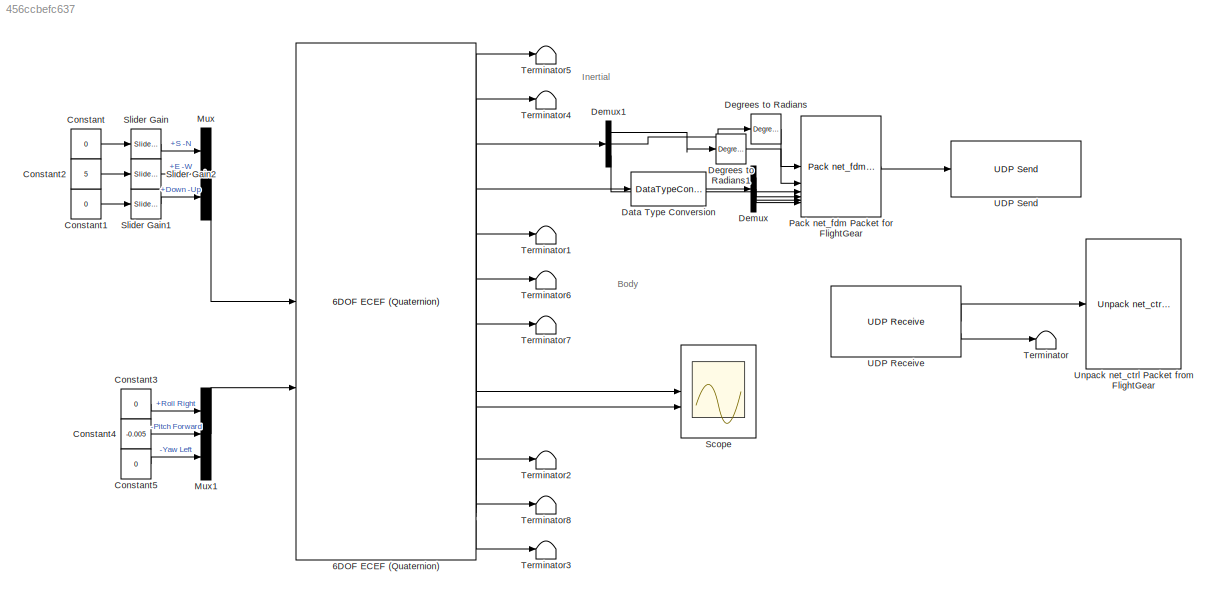
MODEL slx_456ccbefc637
KIND model
CONFIG AbsTol = auto
CONFIG EnableMultiTasking = on
CONFIG FixedStep = auto
CONFIG MaxStep = auto
CONFIG MinStep = auto
CONFIG RelTol = 1e-3
CONFIG SampleTimeConstraint = Unconstrained
CONFIG SolverName = FixedStepAuto
CONFIG StartTime = 0.0
CONFIG StopTime = 15
BLOCK [Reference] 6DOF ECEF (Quaternion)  REF=aerolib6dof2/6DOF ECEF (Quaternion)
  SourceBlock = aerolib6dof2/6DOF ECEF (Quaternion)
  SourceType = 6DOF EoM (ECEF)
BLOCK [Constant] Constant
  Value = 0
BLOCK [Constant] Constant1
  Value = 0
BLOCK [Constant] Constant2
  Value = 5
BLOCK [Constant] Constant3
  Value = 0
BLOCK [Constant] Constant4
  Value = -0.005
BLOCK [Constant] Constant5
  Value = 0
BLOCK [DataTypeConversion] Data Type Conversion
  OutDataTypeStr = single
  RndMeth = Floor
  SaturateOnIntegerOverflow = off
BLOCK [Reference] Degrees to Radians  REF=simulink_extras/Transformations/Degrees to
Radians
  SourceBlock = simulink_extras/Transformations/Degrees to\nRadians
  SourceType = DegreesToRadians
BLOCK [Reference] Degrees to Radians1  REF=simulink_extras/Transformations/Degrees to
Radians
  SourceBlock = simulink_extras/Transformations/Degrees to\nRadians
  SourceType = DegreesToRadians
BLOCK [Demux] Demux
  Outputs = 3
BLOCK [Demux] Demux1
  Outputs = 3
BLOCK [Mux] Mux
  DisplayOption = bar
  Inputs = 3
BLOCK [Mux] Mux1
  DisplayOption = bar
  Inputs = 3
BLOCK [Reference] Pack net_fdm Packet for FlightGear  REF=aerolibfltsims/Pack
net_fdm Packet
for FlightGear
  SourceBlock = aerolibfltsims/Pack\nnet_fdm Packet\nfor FlightGear
  SourceType = FlightGearPackNetFdm
BLOCK [Scope] Scope
  ActiveDisplayYMaximum = 17.665401740524448
  ActiveDisplayYMinimum = -7.4842430519070433
  Floating = off
  GraphicalSettings = {"Style":{"BackgroundColor":[0.12941176470588237,0.12941176470588237,0.12941176470588237],"AxesColor":[0.07058823529411765,0.07058823529411765,0.07058823529411765],"LabelsColor":[0.8509803921568627,0.8509803921568627,0.8509803921568627],"PreserveColors":false,"Visible":[true,true,true,true,true,true],"LineStyle":["-","-","-","-","-","-"],"LineWidth":[1.5,1.5,1.5,1.5,1.5,1.5],"BarWidth":[0.9,0.9,0....<+2608ch>
  MultipleDisplayCache = [{"MaxYLimMag":12.583427004824895,"MaxYLimReal":17.665401740524448,"MinYLimMag":0,"MinYLimReal":-7.4842430519070433,"PlotAsMagnitudePhase":false,"ShowGrid":true,"ShowLegend":false,"Title":"%<SignalLabel>","YLabel":""}]
  NumInputPorts = 2
  ScopeFrameLocation = window
  WasSavedAsWebScope = on
  WindowPosition = [680.000000,330.000000,560.000000,420.000000,]
BLOCK [Reference] Slider Gain  REF=simulink/Math
Operations/Slider
Gain
  SourceBlock = simulink/Math\nOperations/Slider\nGain
  SourceType = Slider Gain
BLOCK [Reference] Slider Gain1  REF=simulink/Math
Operations/Slider
Gain
  SourceBlock = simulink/Math\nOperations/Slider\nGain
  SourceType = Slider Gain
BLOCK [Reference] Slider Gain2  REF=simulink/Math
Operations/Slider
Gain
  SourceBlock = simulink/Math\nOperations/Slider\nGain
  SourceType = Slider Gain
BLOCK [Terminator] Terminator
BLOCK [Terminator] Terminator1
BLOCK [Terminator] Terminator2
BLOCK [Terminator] Terminator3
BLOCK [Terminator] Terminator4
BLOCK [Terminator] Terminator5
BLOCK [Terminator] Terminator6
BLOCK [Terminator] Terminator7
BLOCK [Terminator] Terminator8
BLOCK [Reference] UDP Receive  REF=instrumentlib/UDP Receive
  SourceBlock = instrumentlib/UDP Receive
  SourceType = instrument.system.UDPReceive
BLOCK [Reference] UDP Send  REF=instrumentlib/UDP Send
  SourceBlock = instrumentlib/UDP Send
  SourceType = instrument.system.UDPSend
BLOCK [Reference] Unpack net_ctrl Packet from FlightGear  REF=aerolibfltsims/Unpack
net_ctrl Packet
from FlightGear
  SourceBlock = aerolibfltsims/Unpack\nnet_ctrl Packet\nfrom FlightGear
  SourceType = FlightGearUnpackNetCtrl
ANNOTATION (root): Body
ANNOTATION (root): Inertial
LINE 6DOF ECEF (Quaternion):1 -> Terminator5:1
LINE 6DOF ECEF (Quaternion):10 -> Terminator2:1
LINE 6DOF ECEF (Quaternion):11 -> Terminator8:1
LINE 6DOF ECEF (Quaternion):12 -> Terminator3:1
LINE 6DOF ECEF (Quaternion):2 -> Terminator4:1
LINE 6DOF ECEF (Quaternion):3 -> Demux1:1
LINE 6DOF ECEF (Quaternion):4 -> Data Type Conversion:1
LINE 6DOF ECEF (Quaternion):5 -> Terminator1:1
LINE 6DOF ECEF (Quaternion):6 -> Terminator6:1
LINE 6DOF ECEF (Quaternion):7 -> Terminator7:1
LINE 6DOF ECEF (Quaternion):8 -> Scope:1
LINE 6DOF ECEF (Quaternion):9 -> Scope:2
LINE Constant1:1 -> Slider Gain1:1
LINE Constant2:1 -> Slider Gain2:1
LINE Constant3:1 -> Mux1:1
LINE Constant4:1 -> Mux1:2
LINE Constant5:1 -> Mux1:3
LINE Constant:1 -> Slider Gain:1
LINE Data Type Conversion:1 -> Demux:1
LINE Degrees to Radians1:1 -> Pack net_fdm Packet for FlightGear:2
LINE Degrees to Radians:1 -> Pack net_fdm Packet for FlightGear:1
LINE Demux1:1 -> Degrees to Radians1:1
LINE Demux1:2 -> Degrees to Radians:1
LINE Demux1:3 -> Pack net_fdm Packet for FlightGear:3
LINE Demux:1 -> Pack net_fdm Packet for FlightGear:4
LINE Demux:2 -> Pack net_fdm Packet for FlightGear:5
LINE Demux:3 -> Pack net_fdm Packet for FlightGear:6
LINE Mux1:1 -> 6DOF ECEF (Quaternion):2
LINE Mux:1 -> 6DOF ECEF (Quaternion):1
LINE Pack net_fdm Packet for FlightGear:1 -> UDP Send:1
LINE Slider Gain1:1 -> Mux:3
LINE Slider Gain2:1 -> Mux:2
LINE Slider Gain:1 -> Mux:1
LINE UDP Receive:1 -> Unpack net_ctrl Packet from FlightGear:1
LINE UDP Receive:2 -> Terminator:1
